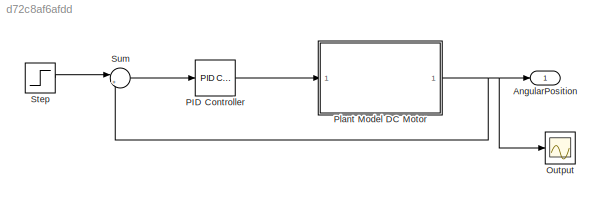
MODEL slx_d72c8af6afdd
KIND model
CONFIG AbsTol = auto
CONFIG EnableMultiTasking = off
CONFIG FixedStep = auto
CONFIG MaxStep = auto
CONFIG MinStep = auto
CONFIG RelTol = 1e-3
CONFIG SampleTimeConstraint = Unconstrained
CONFIG SolverName = VariableStepAuto
CONFIG StartTime = 0.0
CONFIG StopTime = 3
BLOCK [Outport] AngularPosition
BLOCK [Scope] Output
  Floating = off
  NumInputPorts = 1
  ScopeSpecificationString = Simulink.scopes.TimeScopeBlockCfg('CurrentConfiguration', extmgr.ConfigurationSet(extmgr.Configuration('Core','General UI',true),extmgr.Configuration('Core','Source UI',true),extmgr.Configuration('Sources','WiredSimulink',true),extmgr.Configuration('Visuals','Time Domain',true,'SerializedDisplays',{struct('MinYLimReal','-0.13755','MaxYLimReal','1.23797','YLabelReal','','MinYLimMag','0.00000','MaxY...<+1369ch>
BLOCK [Reference] PID Controller  REF=slpidlib/PID Controller
  SourceBlock = slpidlib/PID Controller
  SourceType = PID 1dof
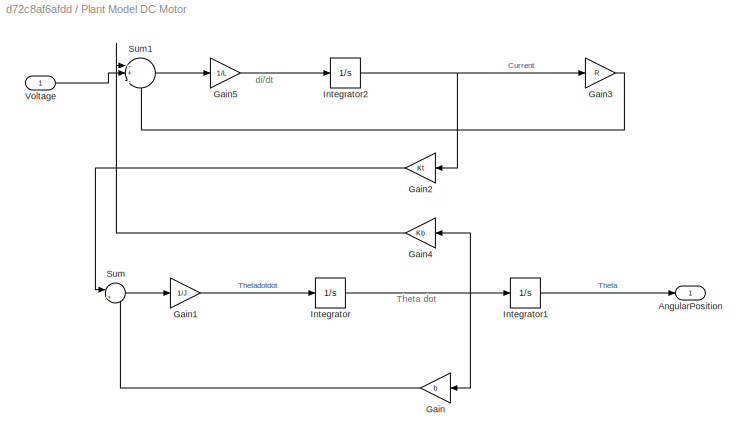
BLOCK [SubSystem] Plant Model DC Motor
BLOCK [Outport] Plant Model DC Motor/AngularPosition
BLOCK [Gain] Plant Model DC Motor/Gain
  Gain = b
BLOCK [Gain] Plant Model DC Motor/Gain1
  Gain = 1/J
BLOCK [Gain] Plant Model DC Motor/Gain2
  Gain = Kt
BLOCK [Gain] Plant Model DC Motor/Gain3
  Gain = R
BLOCK [Gain] Plant Model DC Motor/Gain4
  Gain = Kb
BLOCK [Gain] Plant Model DC Motor/Gain5
  Gain = 1/L
BLOCK [Integrator] Plant Model DC Motor/Integrator
BLOCK [Integrator] Plant Model DC Motor/Integrator1
BLOCK [Integrator] Plant Model DC Motor/Integrator2
BLOCK [Sum] Plant Model DC Motor/Sum
  Inputs = |+-
BLOCK [Sum] Plant Model DC Motor/Sum1
  Inputs = -+-
BLOCK [Inport] Plant Model DC Motor/Voltage
BLOCK [Step] Step
  SampleTime = 0
BLOCK [Sum] Sum
  Inputs = |+-
ANNOTATION Plant Model DC Motor: Theta dot
ANNOTATION Plant Model DC Motor: di/dt
LINE PID Controller:1 -> Plant Model DC Motor:1
LINE Plant Model DC Motor/Gain1:1 -> Plant Model DC Motor/Integrator:1
LINE Plant Model DC Motor/Gain2:1 -> Plant Model DC Motor/Sum:1
LINE Plant Model DC Motor/Gain3:1 -> Plant Model DC Motor/Sum1:3
LINE Plant Model DC Motor/Gain4:1 -> Plant Model DC Motor/Sum1:1
LINE Plant Model DC Motor/Gain5:1 -> Plant Model DC Motor/Integrator2:1
LINE Plant Model DC Motor/Gain:1 -> Plant Model DC Motor/Sum:2
LINE Plant Model DC Motor/Integrator1:1 -> Plant Model DC Motor/AngularPosition:1
NET Plant Model DC Motor/Integrator2:1 -> Plant Model DC Motor/Gain2:1, Plant Model DC Motor/Gain3:1
NET Plant Model DC Motor/Integrator:1 -> Plant Model DC Motor/Gain4:1, Plant Model DC Motor/Gain:1, Plant Model DC Motor/Integrator1:1
LINE Plant Model DC Motor/Sum1:1 -> Plant Model DC Motor/Gain5:1
LINE Plant Model DC Motor/Sum:1 -> Plant Model DC Motor/Gain1:1
LINE Plant Model DC Motor/Voltage:1 -> Plant Model DC Motor/Sum1:2
NET Plant Model DC Motor:1 -> AngularPosition:1, Output:1, Sum:2
LINE Step:1 -> Sum:1
LINE Sum:1 -> PID Controller:1
note: NET lines group one-source signal fan-out (src -> all destinations, sorted); 1:1 wires keep LINE
